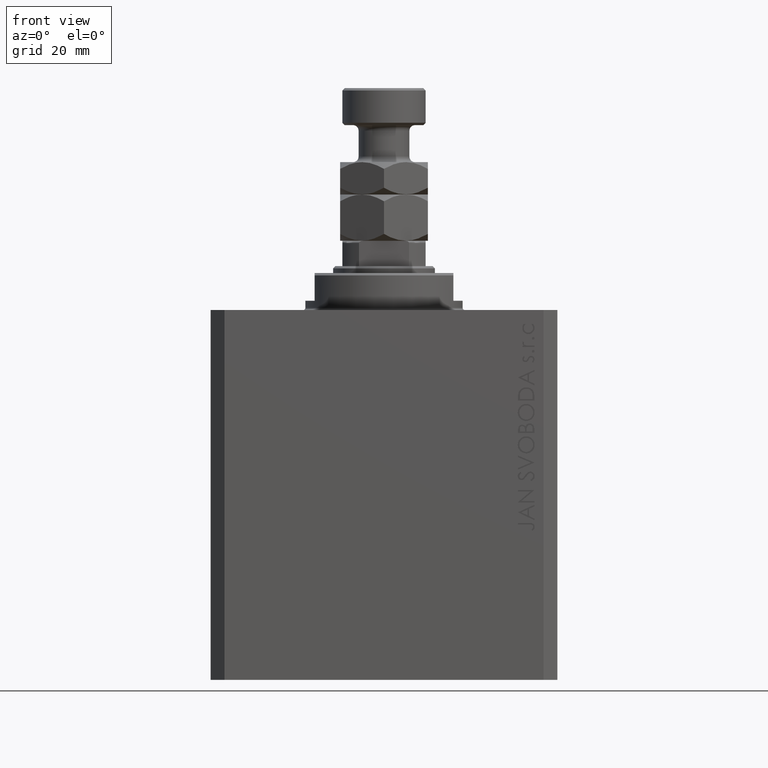
[diagram: clean part render]
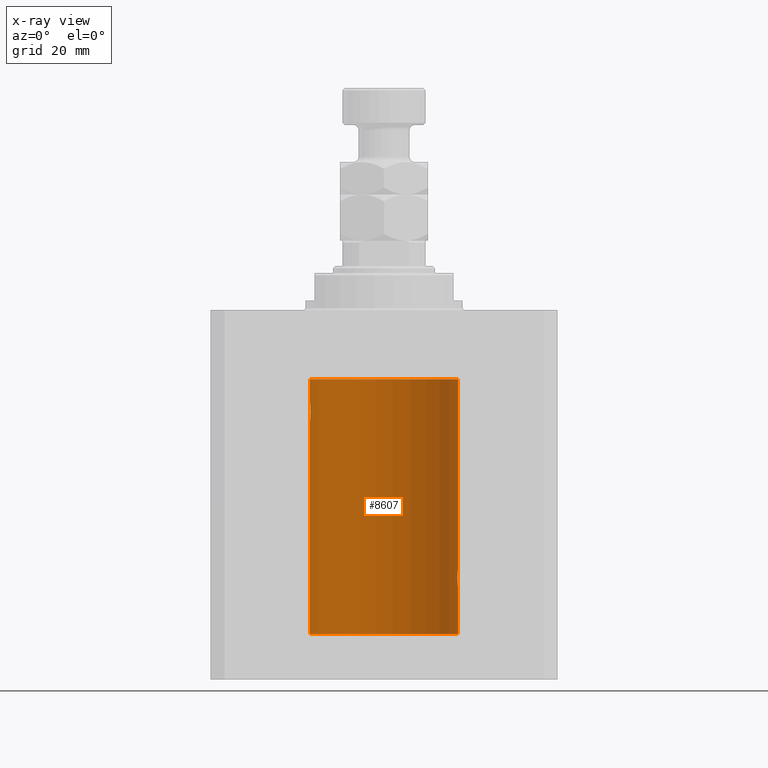
[diagram: x-ray — body ghosted, one internal face saturated and labeled with its STEP entity id]
A machine part, front view, then the same camera in x-ray: the body is ghosted and one INTERNAL B-rep face — a face not visible from any outside direction — is saturated and labeled: STEP entity #8607.
In plain terms, the highlighted cylindrical surface (partial cylindrical patch) has radius 16 mm, axis along (0, 0, 1).
Its self-contained STEP definition (entity closure, byte-faithful):
#808 = CARTESIAN_POINT ( 'NONE',  ( 16.00000000000000000, 0.000000000000000000, -70.09999999999999432 ) ) ;
#1030 = VECTOR ( 'NONE', #23236, 1000.000000000000000 ) ;
#1842 = CARTESIAN_POINT ( 'NONE',  ( 15.88249567060696243, 1.935716055827881199, -57.48027816021619429 ) ) ;
#2077 = CARTESIAN_POINT ( 'NONE',  ( 15.99207203775707065, 0.5197027266689117075, -56.06427960618061945 ) ) ;
#2376 = CARTESIAN_POINT ( 'NONE',  ( -15.87450182760079542, 2.000047931387149092, -22.12985308350499380 ) ) ;
#2433 = ORIENTED_EDGE ( 'NONE', *, *, #22081, .T. ) ;
#2711 = VECTOR ( 'NONE', #40111, 1000.000000000000000 ) ;
#2914 = ORIENTED_EDGE ( 'NONE', *, *, #10205, .T. ) ;
#3011 = ORIENTED_EDGE ( 'NONE', *, *, #15573, .T. ) ;
#3185 = VERTEX_POINT ( 'NONE', #28705 ) ;
#4256 = CARTESIAN_POINT ( 'NONE',  ( 15.97582125337101644, 0.8876008124445635694, -59.79704090617750722 ) ) ;
#4316 = CARTESIAN_POINT ( 'NONE',  ( 16.00000000000000000, 0.000000000000000000, -70.09999999999999432 ) ) ;
#4822 = DIRECTION ( 'NONE',  ( -0.000000000000000000, -0.000000000000000000, 1.000000000000000000 ) ) ;
#5146 = CARTESIAN_POINT ( 'NONE',  ( 16.00000000000000000, -2.739635037742051899E-23, -56.00000000000000000 ) ) ;
#5155 = DIRECTION ( 'NONE',  ( 0.000000000000000000, 0.000000000000000000, 1.000000000000000000 ) ) ;
#5186 = CARTESIAN_POINT ( 'NONE',  ( 15.94550883254178686, 1.322613426523516988, -59.50588495029015235 ) ) ;
#5211 = CARTESIAN_POINT ( 'NONE',  ( -15.95377581882983442, 1.220169175415122931, -23.59001528100121803 ) ) ;
#5845 = CARTESIAN_POINT ( 'NONE',  ( 15.87617168140110380, 1.986916736634008140, -57.73680934434935352 ) ) ;
#5911 = CARTESIAN_POINT ( 'NONE',  ( -15.97587307151818159, 0.8866640484200133399, -23.79749928605040665 ) ) ;
#6137 = CARTESIAN_POINT ( 'NONE',  ( -15.87616016863256618, 1.987008272775798723, -22.26251583007899626 ) ) ;
#6562 = CARTESIAN_POINT ( 'NONE',  ( -16.00000000000000000, 1.959434878635765131E-15, -70.09999999999999432 ) ) ;
#8299 = AXIS2_PLACEMENT_3D ( 'NONE', #30697, #5155, #30932 ) ;
#8607 = ADVANCED_FACE ( 'NONE', ( #17518 ), #14460, .F. ) ;
#8951 = CARTESIAN_POINT ( 'NONE',  ( 15.87450786638751410, 2.000000000000305089, -58.26124530359818721 ) ) ;
#9371 = CARTESIAN_POINT ( 'NONE',  ( 15.95379436193629985, 1.219925354616381297, -56.40980009844313514 ) ) ;
#9375 = DIRECTION ( 'NONE',  ( 1.000000000000000000, 0.000000000000000000, 0.000000000000000000 ) ) ;
#9447 = CARTESIAN_POINT ( 'NONE',  ( -15.98744362947834929, 0.6452446332038160870, -20.10241129944407490 ) ) ;
#9600 = CARTESIAN_POINT ( 'NONE',  ( 15.89878974374255449, 1.797508500259983100, -57.11334888788567099 ) ) ;
#9605 = CARTESIAN_POINT ( 'NONE',  ( 0.000000000000000000, 0.000000000000000000, -70.09999999999999432 ) ) ;
#9987 = EDGE_CURVE ( 'NONE', #29319, #35272, #14529, .T. ) ;
#10205 = EDGE_CURVE ( 'NONE', #23486, #33836, #30756, .T. ) ;
#10511 = DIRECTION ( 'NONE',  ( -0.000000000000000000, -0.000000000000000000, 1.000000000000000000 ) ) ;
#10574 = VECTOR ( 'NONE', #10511, 1000.000000000000000 ) ;
#10713 = ORIENTED_EDGE ( 'NONE', *, *, #24438, .T. ) ;
#11276 = ORIENTED_EDGE ( 'NONE', *, *, #32480, .T. ) ;
#11360 = B_SPLINE_CURVE_WITH_KNOTS ( 'NONE', 3,
 ( #40056, #36550, #5845, #1842, #41683, #9600, #12645, #19900, #27184, #37708, #9371, #23193, #34435, #41451, #2077, #23663, #12879, #5146 ),
 .UNSPECIFIED., .F., .F.,
 ( 4, 2, 2, 2, 2, 2, 2, 2, 4 ),
 ( 0.003130250677538710252, 0.003521348247420683433, 0.003912445817302656614, 0.004303543387184629795, 0.004694640957066602976, 0.005085738526948576158, 0.005476836096830549339, 0.005867933666712522520, 0.006259031236594495701 ),
 .UNSPECIFIED. ) ;
#11541 = CARTESIAN_POINT ( 'NONE',  ( -16.00000000000000000, 1.959434878635765131E-15, -70.09999999999999432 ) ) ;
#11627 = CARTESIAN_POINT ( 'NONE',  ( -16.00000000000000000, 1.959434878635765131E-15, -70.09999999999999432 ) ) ;
#12481 = CARTESIAN_POINT ( 'NONE',  ( -15.94553003295877680, 1.322357532253827461, -20.49389287531754889 ) ) ;
#12645 = CARTESIAN_POINT ( 'NONE',  ( 15.90582997788426312, 1.734897462761025189, -56.99646332855052577 ) ) ;
#12879 = CARTESIAN_POINT ( 'NONE',  ( 16.00000000000000000, 0.1305637488590870032, -55.99999999999998579 ) ) ;
#12952 = CARTESIAN_POINT ( 'NONE',  ( -16.00000000000000000, 0.1305944228192325030, -23.99999999999999645 ) ) ;
#13398 = CARTESIAN_POINT ( 'NONE',  ( -15.88709929148890510, 1.898058445420892637, -22.64386968033013403 ) ) ;
#13775 = CARTESIAN_POINT ( 'NONE',  ( 0.000000000000000000, 0.000000000000000000, -70.09999999999999432 ) ) ;
#14460 = CYLINDRICAL_SURFACE ( 'NONE', #32675, 16.00000000000000000 ) ;
#14529 = B_SPLINE_CURVE_WITH_KNOTS ( 'NONE', 3,
 ( #41751, #23262, #23497, #44576, #9447, #26782, #38233, #41525, #12481, #31219, #37313, #23732, #19733, #2376, #6137, #30527, #13398, #38012, #34277, #45046, #44812, #19972, #5211, #20200, #5911, #45506, #41055, #27022, #12952, #34505 ),
 .UNSPECIFIED., .F., .F.,
 ( 4, 2, 2, 2, 2, 2, 2, 2, 2, 2, 2, 2, 2, 2, 4 ),
 ( 7.909002969168862706E-19, 0.0003911894522871180884, 0.0007823789045742353095, 0.001173568356861352802, 0.001564757809148469968, 0.002347136713722698664, 0.003129515618296926493, 0.003520705070584046262, 0.003911894522871165597, 0.004303083975158284932, 0.004694273427445404268, 0.005085462879732523603, 0.005476652332019642938, 0.005867841784306762273, 0.006259031236593881609 ),
 .UNSPECIFIED. ) ;
#15260 = CARTESIAN_POINT ( 'NONE',  ( 16.00000000000000000, -1.269217749118193288E-15, -60.00000000000000711 ) ) ;
#15573 = EDGE_CURVE ( 'NONE', #3185, #36419, #11360, .T. ) ;
#16328 = EDGE_CURVE ( 'NONE', #16810, #41559, #34709, .T. ) ;
#16433 = LINE ( 'NONE', #4316, #1030 ) ;
#16810 = VERTEX_POINT ( 'NONE', #808 ) ;
#17518 = FACE_OUTER_BOUND ( 'NONE', #28675, .T. ) ;
#18443 = CARTESIAN_POINT ( 'NONE',  ( 16.00000000000000000, 0.000000000000000000, -15.00000000000000000 ) ) ;
#18543 = CARTESIAN_POINT ( 'NONE',  ( 15.95380611548779015, 1.219810915946573759, -59.59032870701327766 ) ) ;
#19733 = CARTESIAN_POINT ( 'NONE',  ( -15.87451999516785506, 1.999903730784163169, -21.73808537237744432 ) ) ;
#19900 = CARTESIAN_POINT ( 'NONE',  ( 15.92095407913750726, 1.590131347295337116, -56.77998469042918828 ) ) ;
#19972 = CARTESIAN_POINT ( 'NONE',  ( -15.94564302722881877, 1.321075116345886924, -23.50737160312428742 ) ) ;
#20200 = CARTESIAN_POINT ( 'NONE',  ( -15.96885838080210362, 1.003662148334370174, -23.73482670674955486 ) ) ;
#20475 = AXIS2_PLACEMENT_3D ( 'NONE', #9605, #27188, #9375 ) ;
#21330 = ORIENTED_EDGE ( 'NONE', *, *, #16328, .F. ) ;
#21619 = LINE ( 'NONE', #11541, #2711 ) ;
#21718 = DIRECTION ( 'NONE',  ( -0.000000000000000000, -0.000000000000000000, 1.000000000000000000 ) ) ;
#22081 = EDGE_CURVE ( 'NONE', #42942, #3185, #33294, .T. ) ;
#22771 = CARTESIAN_POINT ( 'NONE',  ( 15.98743782203464825, 0.6453927552190282801, -59.89754035852681824 ) ) ;
#23193 = CARTESIAN_POINT ( 'NONE',  ( 15.96887171920781689, 1.003448269354840328, -56.26505182542073413 ) ) ;
#23234 = CARTESIAN_POINT ( 'NONE',  ( 15.99211620657850830, 0.5182628822511372579, -59.93608344894171580 ) ) ;
#23236 = DIRECTION ( 'NONE',  ( -0.000000000000000000, -0.000000000000000000, 1.000000000000000000 ) ) ;
#23262 = CARTESIAN_POINT ( 'NONE',  ( -15.99999999999999645, 0.1322838750249263340, -20.00000000000000000 ) ) ;
#23486 = VERTEX_POINT ( 'NONE', #18443 ) ;
#23497 = CARTESIAN_POINT ( 'NONE',  ( -15.99836091803360283, 0.2623312429553310565, -20.01299475991587329 ) ) ;
#23663 = CARTESIAN_POINT ( 'NONE',  ( 15.99834953062734222, 0.2631943783489377742, -56.01308452963880313 ) ) ;
#23732 = CARTESIAN_POINT ( 'NONE',  ( -15.88137861827787134, 1.947280337074169587, -21.47468243540596333 ) ) ;
#24438 = EDGE_CURVE ( 'NONE', #36419, #23486, #29003, .T. ) ;
#25820 = CARTESIAN_POINT ( 'NONE',  ( 15.99999999999999645, 0.1323149458028785030, -60.00000000000003553 ) ) ;
#26054 = CARTESIAN_POINT ( 'NONE',  ( 15.90454527605182200, 1.748004143318092840, -59.00616739381551668 ) ) ;
#26782 = CARTESIAN_POINT ( 'NONE',  ( -15.97583181162461052, 0.8874076679346778462, -20.20286585251778888 ) ) ;
#26874 = CARTESIAN_POINT ( 'NONE',  ( -16.00000000000000000, 1.959434851239607631E-15, -23.99999999999999645 ) ) ;
#27022 = CARTESIAN_POINT ( 'NONE',  ( -15.99834873924246104, 0.2632563459770838055, -23.98690924832126115 ) ) ;
#27172 = CARTESIAN_POINT ( 'NONE',  ( -16.00000000000000000, 8.139613661842072923E-16, -20.00000000000000000 ) ) ;
#27184 = CARTESIAN_POINT ( 'NONE',  ( 15.92911104305801828, 1.507378839264609027, -56.67893664295412037 ) ) ;
#27188 = DIRECTION ( 'NONE',  ( 0.000000000000000000, 0.000000000000000000, 1.000000000000000000 ) ) ;
#28675 = EDGE_LOOP ( 'NONE', ( #38127, #21330, #11276, #2433, #3011, #10713, #2914, #37274, #35547 ) ) ;
#28705 = CARTESIAN_POINT ( 'NONE',  ( 15.87450786638750699, 2.000000000000304201, -58.00000000000000000 ) ) ;
#29003 = LINE ( 'NONE', #42595, #10574 ) ;
#29319 = VERTEX_POINT ( 'NONE', #27172 ) ;
#29336 = CARTESIAN_POINT ( 'NONE',  ( 15.99836014839681830, 0.2623923436743428317, -59.98699919334817565 ) ) ;
#29567 = CARTESIAN_POINT ( 'NONE',  ( 15.92096875784782739, 1.599058044721139105, -59.22922593843968286 ) ) ;
#30527 = CARTESIAN_POINT ( 'NONE',  ( -15.88247600692092831, 1.935876924222084350, -22.51913097710111700 ) ) ;
#30697 = CARTESIAN_POINT ( 'NONE',  ( 0.000000000000000000, 0.000000000000000000, -15.00000000000000000 ) ) ;
#30756 = CIRCLE ( 'NONE', #8299, 16.00000000000000000 ) ;
#30932 = DIRECTION ( 'NONE',  ( 1.000000000000000000, 0.000000000000000000, 0.000000000000000000 ) ) ;
#31219 = CARTESIAN_POINT ( 'NONE',  ( -15.92099550861380131, 1.598790766515155282, -20.77043888260214644 ) ) ;
#31545 = CARTESIAN_POINT ( 'NONE',  ( 16.00000000000000000, -1.269217749118193288E-15, -60.00000000000000711 ) ) ;
#32480 = EDGE_CURVE ( 'NONE', #16810, #42942, #16433, .T. ) ;
#32675 = AXIS2_PLACEMENT_3D ( 'NONE', #13775, #21718, #38830 ) ;
#32838 = CARTESIAN_POINT ( 'NONE',  ( 15.87450786638750699, 2.000000000000304201, -58.00000000000000000 ) ) ;
#33294 = B_SPLINE_CURVE_WITH_KNOTS ( 'NONE', 3,
 ( #15260, #25820, #29336, #23234, #22771, #4256, #40559, #18543, #5186, #29567, #26054, #41032, #8951, #32838 ),
 .UNSPECIFIED., .F., .F.,
 ( 4, 2, 2, 2, 2, 2, 4 ),
 ( 1.233258403080811936E-18, 0.0003912813346923395947, 0.0007825626693846778883, 0.001173844004077016561, 0.001565125338769355343, 0.002347688008154032689, 0.003130250677538710252 ),
 .UNSPECIFIED. ) ;
#33836 = VERTEX_POINT ( 'NONE', #46220 ) ;
#34277 = CARTESIAN_POINT ( 'NONE',  ( -15.90580292899658055, 1.735145127817749655, -23.00311247035039486 ) ) ;
#34435 = CARTESIAN_POINT ( 'NONE',  ( 15.97588373855009536, 0.8864683965309536617, -56.20240655627671345 ) ) ;
#34505 = CARTESIAN_POINT ( 'NONE',  ( -16.00000000000000000, 1.959434851239607631E-15, -23.99999999999999645 ) ) ;
#34709 = CIRCLE ( 'NONE', #20475, 16.00000000000000000 ) ;
#35272 = VERTEX_POINT ( 'NONE', #26874 ) ;
#35547 = ORIENTED_EDGE ( 'NONE', *, *, #9987, .T. ) ;
#36419 = VERTEX_POINT ( 'NONE', #39758 ) ;
#36550 = CARTESIAN_POINT ( 'NONE',  ( 15.87450786638751055, 2.000000000000304201, -57.86943869497294202 ) ) ;
#37274 = ORIENTED_EDGE ( 'NONE', *, *, #43170, .F. ) ;
#37313 = CARTESIAN_POINT ( 'NONE',  ( -15.90457341008072412, 1.747750603376305278, -20.99340818440418488 ) ) ;
#37708 = CARTESIAN_POINT ( 'NONE',  ( 15.94566414814287469, 1.320819617421912229, -56.49240758272490837 ) ) ;
#38012 = CARTESIAN_POINT ( 'NONE',  ( -15.89876304682112362, 1.797743958659264507, -22.88617757057269841 ) ) ;
#38127 = ORIENTED_EDGE ( 'NONE', *, *, #43980, .F. ) ;
#38233 = CARTESIAN_POINT ( 'NONE',  ( -15.96895041604535770, 1.002241074716284874, -20.26431901501738153 ) ) ;
#38830 = DIRECTION ( 'NONE',  ( 1.000000000000000000, 0.000000000000000000, 0.000000000000000000 ) ) ;
#39429 = VECTOR ( 'NONE', #4822, 1000.000000000000000 ) ;
#39758 = CARTESIAN_POINT ( 'NONE',  ( 16.00000000000000000, -2.739635037742051899E-23, -56.00000000000000000 ) ) ;
#39960 = LINE ( 'NONE', #11627, #39429 ) ;
#40056 = CARTESIAN_POINT ( 'NONE',  ( 15.87450786638750699, 2.000000000000304201, -58.00000000000000000 ) ) ;
#40111 = DIRECTION ( 'NONE',  ( -0.000000000000000000, -0.000000000000000000, 1.000000000000000000 ) ) ;
#40559 = CARTESIAN_POINT ( 'NONE',  ( 15.96893716441425859, 1.002454028984433698, -59.73556042441212810 ) ) ;
#41032 = CARTESIAN_POINT ( 'NONE',  ( 15.88135773388169447, 1.947448446433286851, -58.52472455433248655 ) ) ;
#41055 = CARTESIAN_POINT ( 'NONE',  ( -15.99206840425678955, 0.5198215460038748681, -23.93569052926128649 ) ) ;
#41451 = CARTESIAN_POINT ( 'NONE',  ( 15.98747899434752817, 0.6443623600228939319, -56.10211550510821610 ) ) ;
#41525 = CARTESIAN_POINT ( 'NONE',  ( -15.95382484008323409, 1.219564485341772198, -20.40948495147901554 ) ) ;
#41559 = VERTEX_POINT ( 'NONE', #6562 ) ;
#41683 = CARTESIAN_POINT ( 'NONE',  ( 15.88712192135845491, 1.897869642555083169, -57.35557946728214773 ) ) ;
#41751 = CARTESIAN_POINT ( 'NONE',  ( -16.00000000000000000, 8.139613661842072923E-16, -20.00000000000000000 ) ) ;
#42595 = CARTESIAN_POINT ( 'NONE',  ( 16.00000000000000000, 0.000000000000000000, -70.09999999999999432 ) ) ;
#42942 = VERTEX_POINT ( 'NONE', #31545 ) ;
#43170 = EDGE_CURVE ( 'NONE', #29319, #33836, #21619, .T. ) ;
#43980 = EDGE_CURVE ( 'NONE', #41559, #35272, #39960, .T. ) ;
#44576 = CARTESIAN_POINT ( 'NONE',  ( -15.99211983514074298, 0.5181437283162074747, -20.06388673317935911 ) ) ;
#44812 = CARTESIAN_POINT ( 'NONE',  ( -15.92908549642226745, 1.507649250492136606, -23.32075824828932653 ) ) ;
#45046 = CARTESIAN_POINT ( 'NONE',  ( -15.92092783521423272, 1.590393755196006786, -23.21967657442277755 ) ) ;
#45506 = CARTESIAN_POINT ( 'NONE',  ( -15.98747331501412461, 0.6445079780200578812, -23.89783726498894723 ) ) ;
#46220 = CARTESIAN_POINT ( 'NONE',  ( -16.00000000000000000, 1.959434878635765131E-15, -15.00000000000000000 ) ) ;